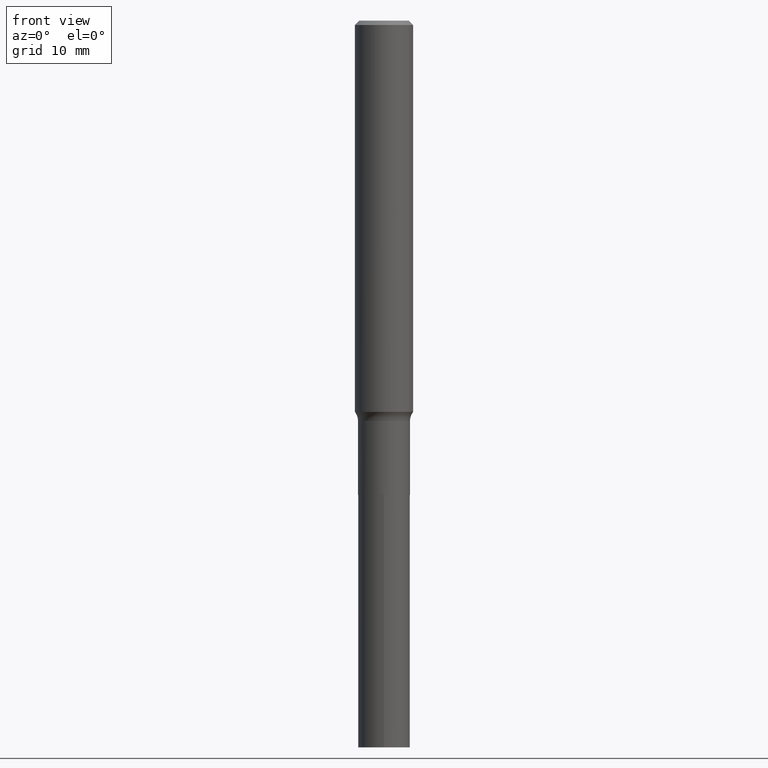
[diagram: clean part render]
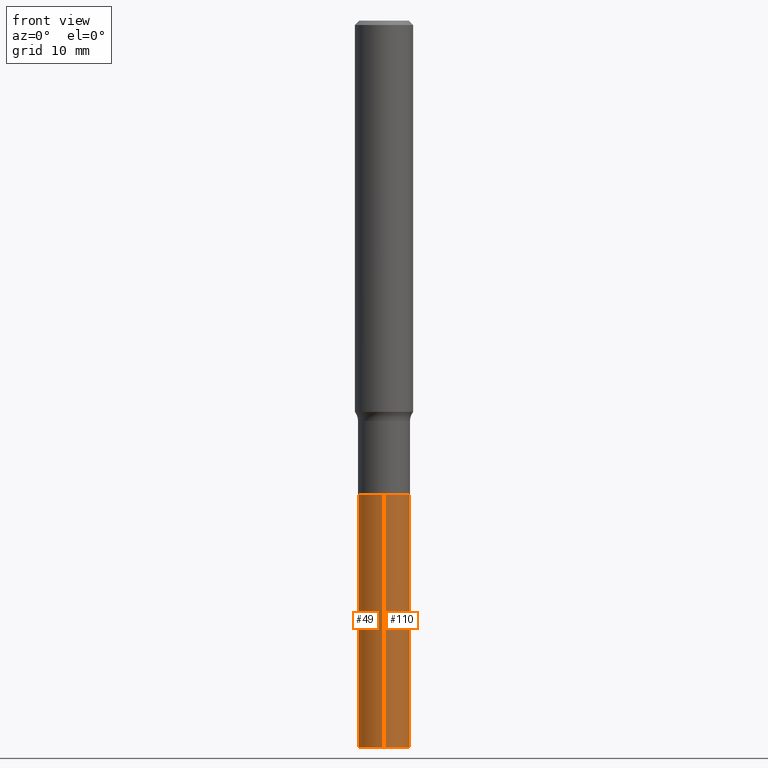
[diagram: same view with one multi-face feature highlighted, each face labeled with its STEP entity id]
A machine part, front view. The highlighted faces form ONE feature: a constant-radius fillet chain: 2 tangent blend faces with common blend radius 3.5712 mm. The faces share edges in the B-rep.
Their STEP definitions:
[1] entity #49 (Cylinder):
#19 = VERTEX_POINT ( 'NONE', #323 ) ;
#21 = ORIENTED_EDGE ( 'NONE', *, *, #156, .F. ) ;
#36 = CYLINDRICAL_SURFACE ( 'NONE', #43, 0.1406000000000000028 ) ;
#43 = AXIS2_PLACEMENT_3D ( 'NONE', #157, #405, #329 ) ;
#45 = EDGE_CURVE ( 'NONE', #241, #378, #326, .T. ) ;
#49 = ADVANCED_FACE ( 'NONE', ( #259 ), #36, .T. ) ;
#54 = ORIENTED_EDGE ( 'NONE', *, *, #296, .T. ) ;
#77 = CIRCLE ( 'NONE', #222, 0.1406000000000000028 ) ;
#86 = CARTESIAN_POINT ( 'NONE',  ( 9.990230864787973191E-16, 0.1405999999999910377, -2.570000000000000728 ) ) ;
#89 = CARTESIAN_POINT ( 'NONE',  ( -9.818045524826261942E-16, -0.1406000000000089678, -2.569999999999999840 ) ) ;
#112 = EDGE_CURVE ( 'NONE', #271, #19, #77, .T. ) ;
#113 = DIRECTION ( 'NONE',  ( -2.445143853453058613E-29, 3.491946689650641980E-15, 1.000000000000000000 ) ) ;
#116 = LINE ( 'NONE', #148, #256 ) ;
#119 = AXIS2_PLACEMENT_3D ( 'NONE', #393, #184, #191 ) ;
#148 = CARTESIAN_POINT ( 'NONE',  ( 9.990230864787635953E-16, 0.1405999999999910099, -2.570000000000000728 ) ) ;
#156 = EDGE_CURVE ( 'NONE', #271, #241, #116, .T. ) ;
#157 = CARTESIAN_POINT ( 'NONE',  ( 6.284854831895801188E-29, -8.973107040826884909E-15, -2.570000000000000284 ) ) ;
#184 = DIRECTION ( 'NONE',  ( -2.445143853453058613E-29, 3.491946689650641980E-15, 1.000000000000000000 ) ) ;
#191 = DIRECTION ( 'NONE',  ( -6.982962677686265133E-15, -1.000000000000000000, 3.885985766236505386E-15 ) ) ;
#202 = DIRECTION ( 'NONE',  ( -2.445143853453058613E-29, 3.491946689650641980E-15, 1.000000000000000000 ) ) ;
#222 = AXIS2_PLACEMENT_3D ( 'NONE', #227, #113, #466 ) ;
#227 = CARTESIAN_POINT ( 'NONE',  ( 9.627366479566134835E-29, -1.374659816557931352E-14, -3.937000000000000721 ) ) ;
#241 = VERTEX_POINT ( 'NONE', #86 ) ;
#256 = VECTOR ( 'NONE', #366, 39.37007874015748143 ) ;
#259 = FACE_OUTER_BOUND ( 'NONE', #281, .T. ) ;
#271 = VERTEX_POINT ( 'NONE', #384 ) ;
#281 = EDGE_LOOP ( 'NONE', ( #21, #391, #54, #390 ) ) ;
#296 = EDGE_CURVE ( 'NONE', #19, #378, #411, .T. ) ;
#323 = CARTESIAN_POINT ( 'NONE',  ( -9.818045524825926676E-16, -0.1406000000000137418, -3.937000000000000277 ) ) ;
#326 = CIRCLE ( 'NONE', #119, 0.1406000000000000028 ) ;
#329 = DIRECTION ( 'NONE',  ( -6.982962677686265133E-15, -1.000000000000000000, 3.885985766236505386E-15 ) ) ;
#366 = DIRECTION ( 'NONE',  ( -2.445143853453058613E-29, 3.491946689650641980E-15, 1.000000000000000000 ) ) ;
#378 = VERTEX_POINT ( 'NONE', #415 ) ;
#384 = CARTESIAN_POINT ( 'NONE',  ( 9.990230864787803586E-16, 0.1405999999999862637, -3.937000000000001165 ) ) ;
#390 = ORIENTED_EDGE ( 'NONE', *, *, #45, .F. ) ;
#391 = ORIENTED_EDGE ( 'NONE', *, *, #112, .T. ) ;
#393 = CARTESIAN_POINT ( 'NONE',  ( 6.284854831895801188E-29, -8.973107040826884909E-15, -2.570000000000000284 ) ) ;
#394 = VECTOR ( 'NONE', #202, 39.37007874015748143 ) ;
#405 = DIRECTION ( 'NONE',  ( -2.445143853453058613E-29, 3.491946689650641980E-15, 1.000000000000000000 ) ) ;
#411 = LINE ( 'NONE', #89, #394 ) ;
#415 = CARTESIAN_POINT ( 'NONE',  ( -9.818045524826261942E-16, -0.1406000000000089678, -2.569999999999999840 ) ) ;
#466 = DIRECTION ( 'NONE',  ( -6.982962677686265133E-15, -1.000000000000000000, 3.885985766236505386E-15 ) ) ;
[2] entity #110 (Cylinder):
#4 = EDGE_CURVE ( 'NONE', #378, #241, #91, .T. ) ;
#19 = VERTEX_POINT ( 'NONE', #323 ) ;
#30 = EDGE_CURVE ( 'NONE', #19, #271, #100, .T. ) ;
#59 = AXIS2_PLACEMENT_3D ( 'NONE', #104, #358, #176 ) ;
#67 = AXIS2_PLACEMENT_3D ( 'NONE', #368, #257, #297 ) ;
#86 = CARTESIAN_POINT ( 'NONE',  ( 9.990230864787973191E-16, 0.1405999999999910377, -2.570000000000000728 ) ) ;
#89 = CARTESIAN_POINT ( 'NONE',  ( -9.818045524826261942E-16, -0.1406000000000089678, -2.569999999999999840 ) ) ;
#91 = CIRCLE ( 'NONE', #270, 0.1406000000000000028 ) ;
#100 = CIRCLE ( 'NONE', #59, 0.1406000000000000028 ) ;
#104 = CARTESIAN_POINT ( 'NONE',  ( 9.627366479566134835E-29, -1.374659816557931352E-14, -3.937000000000000721 ) ) ;
#110 = ADVANCED_FACE ( 'NONE', ( #295 ), #339, .T. ) ;
#116 = LINE ( 'NONE', #148, #256 ) ;
#134 = CARTESIAN_POINT ( 'NONE',  ( 6.284854831895801188E-29, -8.973107040826884909E-15, -2.570000000000000284 ) ) ;
#148 = CARTESIAN_POINT ( 'NONE',  ( 9.990230864787635953E-16, 0.1405999999999910099, -2.570000000000000728 ) ) ;
#156 = EDGE_CURVE ( 'NONE', #271, #241, #116, .T. ) ;
#176 = DIRECTION ( 'NONE',  ( -6.982962677686265133E-15, -1.000000000000000000, 3.885985766236505386E-15 ) ) ;
#202 = DIRECTION ( 'NONE',  ( -2.445143853453058613E-29, 3.491946689650641980E-15, 1.000000000000000000 ) ) ;
#211 = DIRECTION ( 'NONE',  ( -2.445143853453058613E-29, 3.491946689650641980E-15, 1.000000000000000000 ) ) ;
#241 = VERTEX_POINT ( 'NONE', #86 ) ;
#256 = VECTOR ( 'NONE', #366, 39.37007874015748143 ) ;
#257 = DIRECTION ( 'NONE',  ( -2.445143853453058613E-29, 3.491946689650641980E-15, 1.000000000000000000 ) ) ;
#270 = AXIS2_PLACEMENT_3D ( 'NONE', #134, #211, #356 ) ;
#271 = VERTEX_POINT ( 'NONE', #384 ) ;
#275 = EDGE_LOOP ( 'NONE', ( #318, #398, #459, #325 ) ) ;
#295 = FACE_OUTER_BOUND ( 'NONE', #275, .T. ) ;
#296 = EDGE_CURVE ( 'NONE', #19, #378, #411, .T. ) ;
#297 = DIRECTION ( 'NONE',  ( -6.982962677686265133E-15, -1.000000000000000000, 3.885985766236505386E-15 ) ) ;
#318 = ORIENTED_EDGE ( 'NONE', *, *, #30, .T. ) ;
#323 = CARTESIAN_POINT ( 'NONE',  ( -9.818045524825926676E-16, -0.1406000000000137418, -3.937000000000000277 ) ) ;
#325 = ORIENTED_EDGE ( 'NONE', *, *, #296, .F. ) ;
#339 = CYLINDRICAL_SURFACE ( 'NONE', #67, 0.1406000000000000028 ) ;
#356 = DIRECTION ( 'NONE',  ( -6.982962677686265133E-15, -1.000000000000000000, 3.885985766236505386E-15 ) ) ;
#358 = DIRECTION ( 'NONE',  ( -2.445143853453058613E-29, 3.491946689650641980E-15, 1.000000000000000000 ) ) ;
#366 = DIRECTION ( 'NONE',  ( -2.445143853453058613E-29, 3.491946689650641980E-15, 1.000000000000000000 ) ) ;
#368 = CARTESIAN_POINT ( 'NONE',  ( 6.284854831895801188E-29, -8.973107040826884909E-15, -2.570000000000000284 ) ) ;
#378 = VERTEX_POINT ( 'NONE', #415 ) ;
#384 = CARTESIAN_POINT ( 'NONE',  ( 9.990230864787803586E-16, 0.1405999999999862637, -3.937000000000001165 ) ) ;
#394 = VECTOR ( 'NONE', #202, 39.37007874015748143 ) ;
#398 = ORIENTED_EDGE ( 'NONE', *, *, #156, .T. ) ;
#411 = LINE ( 'NONE', #89, #394 ) ;
#415 = CARTESIAN_POINT ( 'NONE',  ( -9.818045524826261942E-16, -0.1406000000000089678, -2.569999999999999840 ) ) ;
#459 = ORIENTED_EDGE ( 'NONE', *, *, #4, .F. ) ;